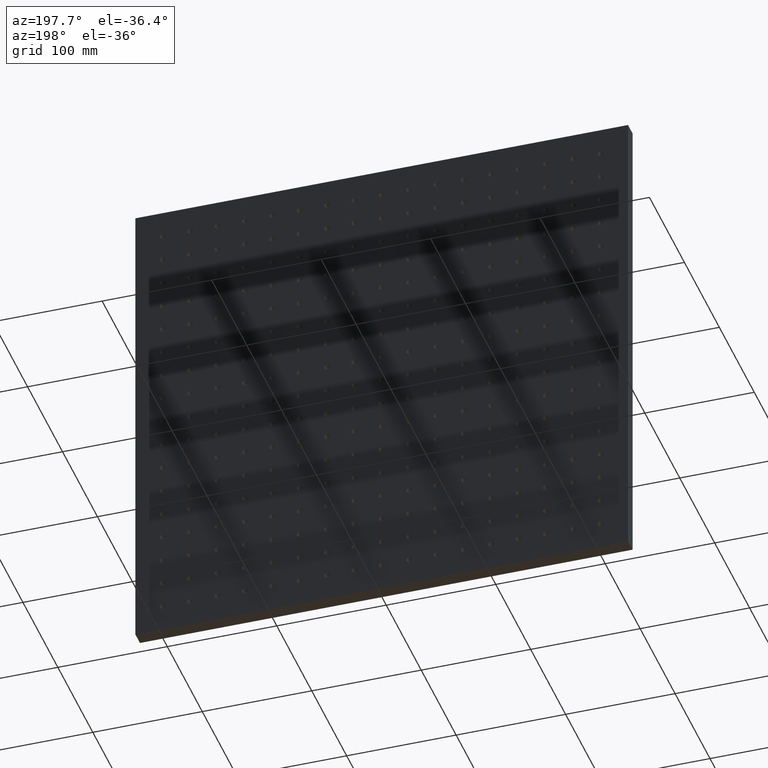
[diagram: clean part render]
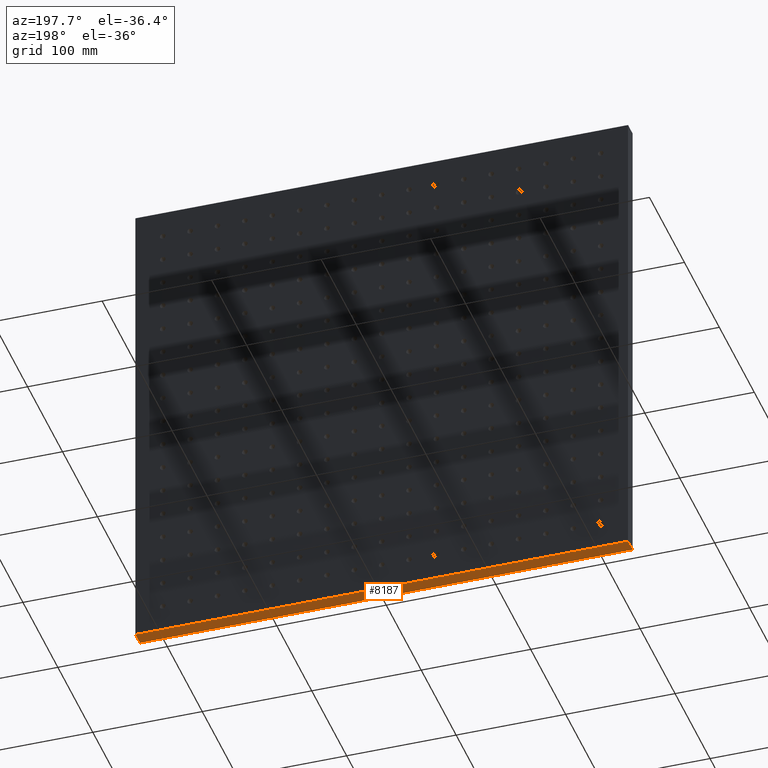
[diagram: same view with one face highlighted and labeled with its STEP entity id]
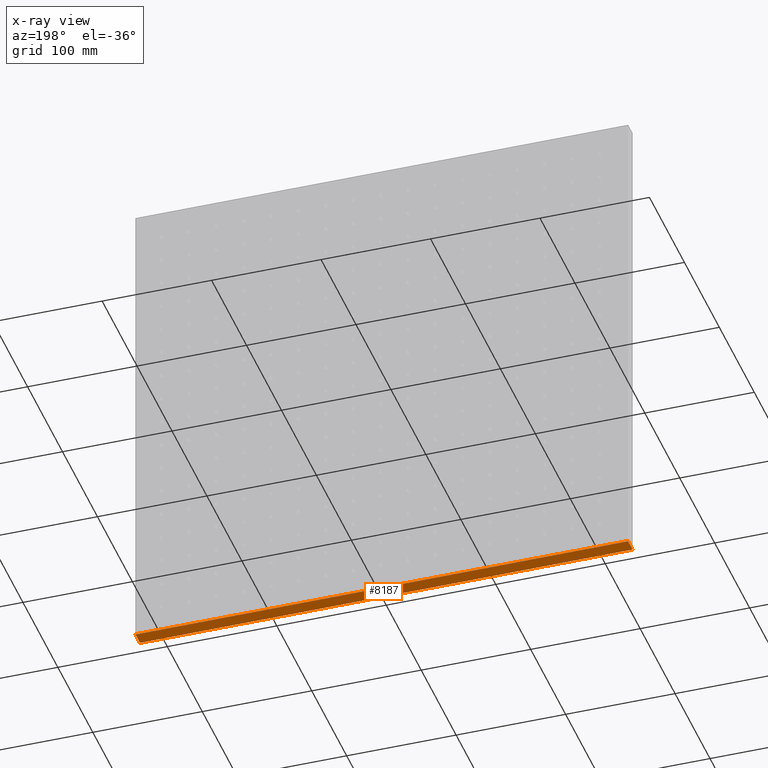
[diagram: x-ray of the same camera — body ghosted, the highlighted face saturated]
A machine part, auxiliary view. The second image highlights one B-rep face of the part: STEP entity #8187.
The next image is the same camera in x-ray: the body ghosted, the highlighted face saturated — about 0% of this face is hidden behind the body in this view.
In plain terms, the highlighted planar face has unit normal (0, 0, 1).
Its self-contained STEP definition (entity closure, byte-faithful):
#558 = VERTEX_POINT ( 'NONE', #6028 ) ;
#657 = DIRECTION ( 'NONE',  ( 1.000000000000000000, 0.000000000000000000, -0.000000000000000000 ) ) ;
#761 = PLANE ( 'NONE',  #19840 ) ;
#1171 = DIRECTION ( 'NONE',  ( -1.000000000000000000, -0.000000000000000000, -0.000000000000000000 ) ) ;
#1218 = CARTESIAN_POINT ( 'NONE',  ( 225.0000000000000000, 13.00000000000000000, -224.9999999999999716 ) ) ;
#2004 = LINE ( 'NONE', #7258, #17164 ) ;
#2442 = ORIENTED_EDGE ( 'NONE', *, *, #6963, .T. ) ;
#4279 = VECTOR ( 'NONE', #13315, 1000.000000000000000 ) ;
#4458 = DIRECTION ( 'NONE',  ( -1.000000000000000000, -0.000000000000000000, -0.000000000000000000 ) ) ;
#5005 = CARTESIAN_POINT ( 'NONE',  ( -225.0000000000000000, 13.00000000000000000, -224.9999999999999716 ) ) ;
#5665 = ORIENTED_EDGE ( 'NONE', *, *, #15321, .F. ) ;
#6028 = CARTESIAN_POINT ( 'NONE',  ( -225.0000000000000000, 0.000000000000000000, -224.9999999999999716 ) ) ;
#6318 = CARTESIAN_POINT ( 'NONE',  ( -225.0000000000000000, 0.000000000000000000, -224.9999999999999716 ) ) ;
#6963 = EDGE_CURVE ( 'NONE', #12182, #558, #16143, .T. ) ;
#7258 = CARTESIAN_POINT ( 'NONE',  ( -225.0000000000000000, 13.00000000000000000, -224.9999999999999716 ) ) ;
#8187 = ADVANCED_FACE ( 'NONE', ( #10598 ), #761, .F. ) ;
#8694 = CARTESIAN_POINT ( 'NONE',  ( 225.0000000000000000, 0.000000000000000000, -224.9999999999999716 ) ) ;
#8869 = EDGE_LOOP ( 'NONE', ( #2442, #5665, #14482, #12925 ) ) ;
#9472 = LINE ( 'NONE', #19523, #16963 ) ;
#10598 = FACE_OUTER_BOUND ( 'NONE', #8869, .T. ) ;
#11795 = CARTESIAN_POINT ( 'NONE',  ( 225.0000000000000000, 13.00000000000000000, -224.9999999999999716 ) ) ;
#11971 = EDGE_CURVE ( 'NONE', #16449, #14785, #9472, .T. ) ;
#12133 = CARTESIAN_POINT ( 'NONE',  ( -225.0000000000000000, 13.00000000000000000, -224.9999999999999716 ) ) ;
#12182 = VERTEX_POINT ( 'NONE', #8694 ) ;
#12925 = ORIENTED_EDGE ( 'NONE', *, *, #18351, .T. ) ;
#13315 = DIRECTION ( 'NONE',  ( -0.000000000000000000, -1.000000000000000000, -0.000000000000000000 ) ) ;
#13689 = DIRECTION ( 'NONE',  ( -0.000000000000000000, -1.000000000000000000, -0.000000000000000000 ) ) ;
#14482 = ORIENTED_EDGE ( 'NONE', *, *, #11971, .F. ) ;
#14785 = VERTEX_POINT ( 'NONE', #5005 ) ;
#15321 = EDGE_CURVE ( 'NONE', #14785, #558, #2004, .T. ) ;
#16143 = LINE ( 'NONE', #6318, #16573 ) ;
#16449 = VERTEX_POINT ( 'NONE', #1218 ) ;
#16573 = VECTOR ( 'NONE', #1171, 1000.000000000000000 ) ;
#16963 = VECTOR ( 'NONE', #4458, 1000.000000000000000 ) ;
#17164 = VECTOR ( 'NONE', #13689, 1000.000000000000000 ) ;
#18238 = LINE ( 'NONE', #11795, #4279 ) ;
#18351 = EDGE_CURVE ( 'NONE', #16449, #12182, #18238, .T. ) ;
#18787 = DIRECTION ( 'NONE',  ( 0.000000000000000000, 0.000000000000000000, 1.000000000000000000 ) ) ;
#19523 = CARTESIAN_POINT ( 'NONE',  ( -225.0000000000000000, 13.00000000000000000, -224.9999999999999716 ) ) ;
#19840 = AXIS2_PLACEMENT_3D ( 'NONE', #12133, #18787, #657 ) ;